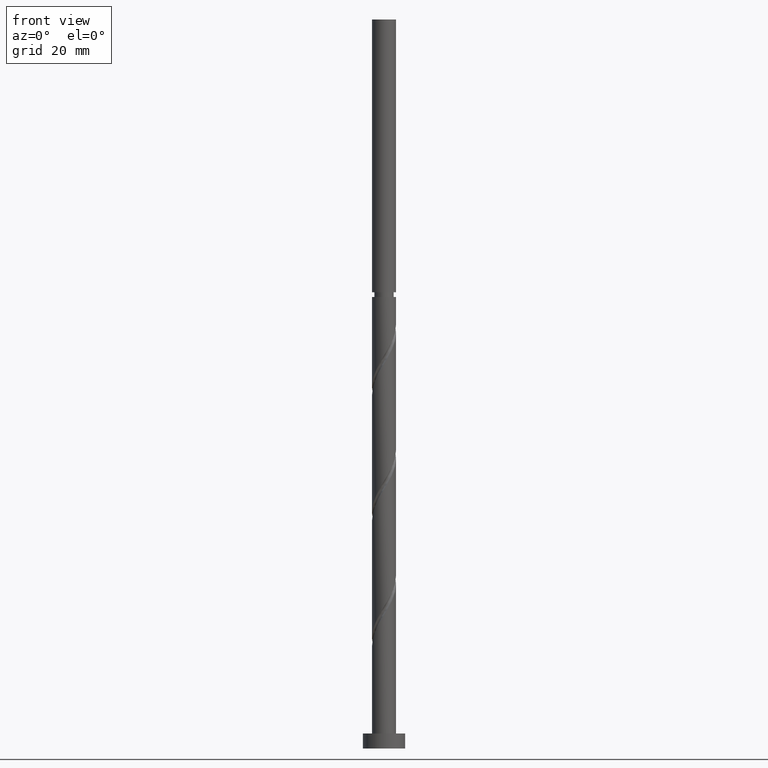
[diagram: clean part render]
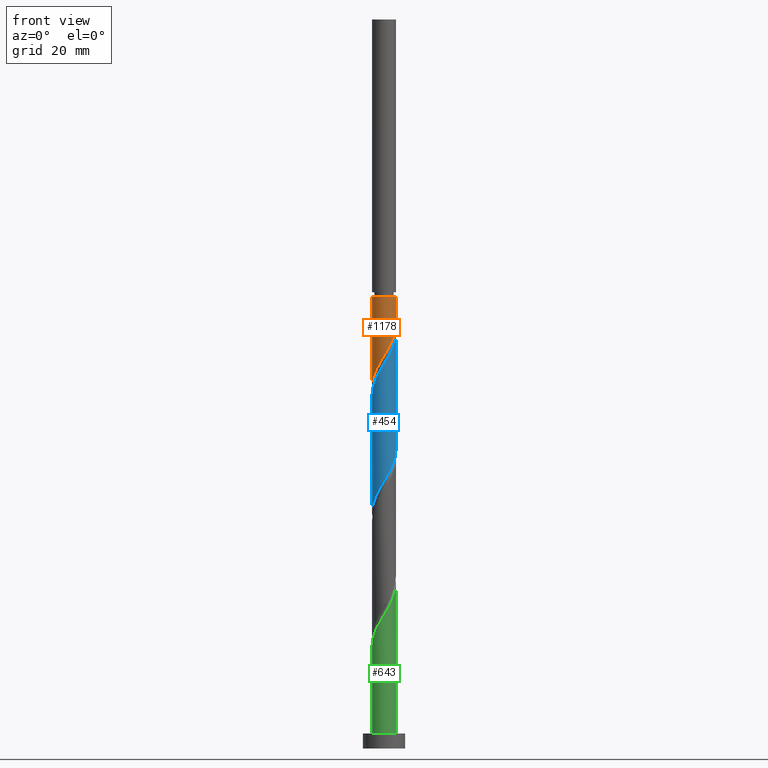
[diagram: same view with three faces highlighted in distinct colors, each labeled with its STEP entity id]
A machine part, front view with three faces highlighted in distinct colors.
Their STEP definitions:

[orange] entity #1178 — the highlighted cylindrical surface (edge-blend (fillet) strip) has radius 4 mm, axis along (-0, -0, -1).
#80 = CARTESIAN_POINT ( 'NONE',  ( 1.116900737103331265, -3.840902594893293109, 132.2366838773035624 ) ) ;
#105 = CARTESIAN_POINT ( 'NONE',  ( 3.795472800412704295, -1.262690073346325770, 138.6469402875599144 ) ) ;
#205 = CARTESIAN_POINT ( 'NONE',  ( -2.149990540898523594, -3.407848799785711869, 126.6277095183292403 ) ) ;
#234 = ORIENTED_EDGE ( 'NONE', *, *, #1509, .F. ) ;
#245 = VECTOR ( 'NONE', #653, 1000.000000000000000 ) ;
#362 = CARTESIAN_POINT ( 'NONE',  ( 3.999999999999999112, -4.337222174653194267E-16, 140.7761442147339324 ) ) ;
#370 = CARTESIAN_POINT ( 'NONE',  ( 0.1652574756069114525, -3.996584787885280488, 130.6341197747394460 ) ) ;
#380 = CARTESIAN_POINT ( 'NONE',  ( -3.678270583471656252, -1.571726921181628267, 122.6212992619189492 ) ) ;
#385 = CARTESIAN_POINT ( 'NONE',  ( -2.526528931719814075, -3.101072646227871932, 125.8264274670471536 ) ) ;
#388 = ORIENTED_EDGE ( 'NONE', *, *, #1774, .F. ) ;
#457 = EDGE_CURVE ( 'NONE', #1026, #851, #1445, .T. ) ;
#468 = CARTESIAN_POINT ( 'NONE',  ( -3.999999999999993339, 0.000000000000000000, 149.8648890055087008 ) ) ;
#470 = DIRECTION ( 'NONE',  ( -0.000000000000000000, -0.000000000000000000, -1.000000000000000000 ) ) ;
#487 = DIRECTION ( 'NONE',  ( -1.000000000000000000, 0.000000000000000000, 0.000000000000000000 ) ) ;
#513 = CARTESIAN_POINT ( 'NONE',  ( 0.6505307266678593825, -3.976518897454785151, 131.4354018260215469 ) ) ;
#537 = EDGE_LOOP ( 'NONE', ( #234, #1492, #1225, #388 ) ) ;
#608 =( BOUNDED_CURVE ( )  B_SPLINE_CURVE ( 2, ( #362, #931, #1239, #1661, #105, #1486, #1786, #1230, #1498, #1080, #1218, #1090, #80, #513, #370, #1515, #636, #1209, #1098, #205, #385, #1653, #776, #1336, #380, #807, #1776, #1521, #814 ),
 .UNSPECIFIED., .F., .T. ) 
 B_SPLINE_CURVE_WITH_KNOTS ( ( 3, 2, 2, 2, 2, 2, 2, 2, 2, 2, 2, 2, 2, 2, 3 ),
 ( 0.3045271625973832164, 0.3076923076923077094, 0.3173076923076922906, 0.3269230769230769273, 0.3365384615384615641, 0.3461538461538461453, 0.3557692307692307820, 0.3653846153846153633, 0.3750000000000000000, 0.3846153846153846367, 0.3942307692307692180, 0.4038461538461538547, 0.4134615384615384359, 0.4230769230769230727, 0.4295271625973834384 ),
 .UNSPECIFIED. ) 
 CURVE ( )  GEOMETRIC_REPRESENTATION_ITEM ( )  RATIONAL_B_SPLINE_CURVE ( ( 0.9061636035682711920, 0.9069090390690599524, 0.9090909090909164991, 0.9024626128164200400, 0.9090909090909164991, 0.9024626128164200400, 0.9090909090909164991, 0.9024626128164200400, 0.9090909090909164991, 0.9024626128164200400, 0.9090909090909164991, 0.9024626128164200400, 0.9090909090909164991, 0.9024626128164200400, 0.9090909090909164991, 0.9024626128164200400, 0.9090909090909164991, 0.9024626128164200400, 0.9090909090909164991, 0.9024626128164200400, 0.9090909090909164991, 0.9024626128164200400, 0.9090909090909164991, 0.9024626128164200400, 0.9090909090909164991, 0.9024626128164200400, 0.9090909090909164991, 0.9046444828382764758, 0.9061636035682714141 ) ) 
 REPRESENTATION_ITEM ( '' )  );
#636 = CARTESIAN_POINT ( 'NONE',  ( -0.7959899496852971268, -3.919999999999999929, 129.0315556721753580 ) ) ;
#652 = CIRCLE ( 'NONE', #681, 3.999999999999993339 ) ;
#653 = DIRECTION ( 'NONE',  ( -0.000000000000000000, -0.000000000000000000, -1.000000000000000000 ) ) ;
#681 = AXIS2_PLACEMENT_3D ( 'NONE', #848, #1410, #972 ) ;
#754 = VERTEX_POINT ( 'NONE', #827 ) ;
#756 = DIRECTION ( 'NONE',  ( -0.000000000000000000, -0.000000000000000000, -1.000000000000000000 ) ) ;
#776 = CARTESIAN_POINT ( 'NONE',  ( -3.195247853079536071, -2.406323161462444737, 124.2238633644830514 ) ) ;
#791 = EDGE_CURVE ( 'NONE', #1440, #1026, #652, .T. ) ;
#801 = CARTESIAN_POINT ( 'NONE',  ( 4.000000000000000000, 4.898587196589412829E-16, 242.0000000000000000 ) ) ;
#807 = CARTESIAN_POINT ( 'NONE',  ( -3.869112783325347582, -1.125104012108398166, 121.8200172106369337 ) ) ;
#814 = CARTESIAN_POINT ( 'NONE',  ( -3.999999999999999112, 4.441913744386202858E-15, 119.9428108814005611 ) ) ;
#827 = CARTESIAN_POINT ( 'NONE',  ( 3.999999999999999112, -4.337222174653194267E-16, 140.7761442147339324 ) ) ;
#848 = CARTESIAN_POINT ( 'NONE',  ( 0.000000000000000000, 0.000000000000000000, 149.8648890055087008 ) ) ;
#851 = VERTEX_POINT ( 'NONE', #1809 ) ;
#931 = CARTESIAN_POINT ( 'NONE',  ( 3.999999999999999112, -0.1590925213470716082, 140.5119732991009585 ) ) ;
#972 = DIRECTION ( 'NONE',  ( -1.000000000000000000, 0.000000000000000000, 0.000000000000000000 ) ) ;
#1012 = CARTESIAN_POINT ( 'NONE',  ( 0.000000000000000000, 0.000000000000000000, 242.0000000000000000 ) ) ;
#1026 = VERTEX_POINT ( 'NONE', #468 ) ;
#1080 = CARTESIAN_POINT ( 'NONE',  ( 2.423996827517794550, -3.218715916066174465, 134.6405300311496944 ) ) ;
#1090 = CARTESIAN_POINT ( 'NONE',  ( 1.583270747538801482, -3.705286292331802844, 133.0379659285856633 ) ) ;
#1098 = CARTESIAN_POINT ( 'NONE',  ( -1.710977332407541240, -3.615599060734966397, 127.4289915696112416 ) ) ;
#1178 = ADVANCED_FACE ( 'NONE', ( #1833 ), #1696, .T. ) ;
#1209 = CARTESIAN_POINT ( 'NONE',  ( -1.271964123916559553, -3.823349321684224478, 128.2302736208933140 ) ) ;
#1218 = CARTESIAN_POINT ( 'NONE',  ( 2.003633787528297461, -3.462001104198987544, 133.8392479798676504 ) ) ;
#1225 = ORIENTED_EDGE ( 'NONE', *, *, #457, .T. ) ;
#1230 = CARTESIAN_POINT ( 'NONE',  ( 3.123849022751422400, -2.545085470315096465, 136.2430941337138393 ) ) ;
#1239 = CARTESIAN_POINT ( 'NONE',  ( 3.987364772516036382, -0.3176825001445939267, 140.2495043901240592 ) ) ;
#1276 = LINE ( 'NONE', #801, #245 ) ;
#1336 = CARTESIAN_POINT ( 'NONE',  ( -3.487428383617967587, -2.018349830254857480, 123.4225813132009932 ) ) ;
#1410 = DIRECTION ( 'NONE',  ( -0.000000000000000000, -0.000000000000000000, -1.000000000000000000 ) ) ;
#1440 = VERTEX_POINT ( 'NONE', #1707 ) ;
#1445 = LINE ( 'NONE', #1468, #1818 ) ;
#1468 = CARTESIAN_POINT ( 'NONE',  ( -4.000000000000000000, 0.000000000000000000, 242.0000000000000000 ) ) ;
#1486 = CARTESIAN_POINT ( 'NONE',  ( 3.642154467511932392, -1.723543908038581485, 137.8456582362779557 ) ) ;
#1492 = ORIENTED_EDGE ( 'NONE', *, *, #791, .T. ) ;
#1498 = CARTESIAN_POINT ( 'NONE',  ( 2.773922925134609585, -2.881900693190634133, 135.4418120824317668 ) ) ;
#1509 = EDGE_CURVE ( 'NONE', #1440, #754, #1276, .T. ) ;
#1515 = CARTESIAN_POINT ( 'NONE',  ( -0.3200157754540360888, -4.016650678315776268, 129.8328377234574305 ) ) ;
#1521 = CARTESIAN_POINT ( 'NONE',  ( -4.000000000000000888, -0.3250257541481746948, 120.4825116187488874 ) ) ;
#1644 = AXIS2_PLACEMENT_3D ( 'NONE', #1012, #470, #487 ) ;
#1653 = CARTESIAN_POINT ( 'NONE',  ( -2.903067322541106332, -2.794296492670033771, 125.0251454157651239 ) ) ;
#1661 = CARTESIAN_POINT ( 'NONE',  ( 3.948791133313477530, -0.8018362386540671682, 139.4482223388420152 ) ) ;
#1696 = CYLINDRICAL_SURFACE ( 'NONE', #1644, 4.000000000000000000 ) ;
#1707 = CARTESIAN_POINT ( 'NONE',  ( 3.999999999999993339, 4.898587196589407898E-16, 149.8648890055087008 ) ) ;
#1774 = EDGE_CURVE ( 'NONE', #754, #851, #608, .T. ) ;
#1776 = CARTESIAN_POINT ( 'NONE',  ( -3.947525597521973406, -0.6457876252366406833, 121.0187351593548613 ) ) ;
#1786 = CARTESIAN_POINT ( 'NONE',  ( 3.383001745131677840, -2.134314689176838975, 137.0443761849958548 ) ) ;
#1809 = CARTESIAN_POINT ( 'NONE',  ( -3.999999999999999112, 4.441913744386202858E-15, 119.9428108814005611 ) ) ;
#1818 = VECTOR ( 'NONE', #756, 1000.000000000000000 ) ;
#1833 = FACE_OUTER_BOUND ( 'NONE', #537, .T. ) ;

[blue] entity #454 — the highlighted cylindrical surface (edge-blend (fillet) strip) has radius 4 mm, axis along (-0, -0, -1).
#17 = CARTESIAN_POINT ( 'NONE',  ( 2.773922925134609585, -2.881900693190634133, 93.77514541576509544 ) ) ;
#41 = CARTESIAN_POINT ( 'NONE',  ( -2.149990540898523594, -3.407848799785711869, 84.96104285166255465 ) ) ;
#59 = CARTESIAN_POINT ( 'NONE',  ( 2.423996827517794550, -3.218715916066174465, 92.97386336448307986 ) ) ;
#63 = ORIENTED_EDGE ( 'NONE', *, *, #794, .F. ) ;
#66 = CARTESIAN_POINT ( 'NONE',  ( -1.271964123916559553, -3.823349321684224478, 86.56360695422665685 ) ) ;
#88 = CARTESIAN_POINT ( 'NONE',  ( 3.999999999999999112, -4.157750912253752728E-15, 99.10947754806721832 ) ) ;
#109 = DIRECTION ( 'NONE',  ( -0.000000000000000000, -0.000000000000000000, -1.000000000000000000 ) ) ;
#113 = CARTESIAN_POINT ( 'NONE',  ( 3.195247853079538292, -2.406323161462450511, 133.8392479798676504 ) ) ;
#142 = CARTESIAN_POINT ( 'NONE',  ( -0.1652574756069151163, -3.996584787885284928, 127.4289915696112416 ) ) ;
#170 = CARTESIAN_POINT ( 'NONE',  ( -0.7959899496852971268, -3.919999999999999929, 87.36488900550871506 ) ) ;
#216 = VECTOR ( 'NONE', #1804, 1000.000000000000000 ) ;
#228 = CARTESIAN_POINT ( 'NONE',  ( -4.000000000000003553, -0.1590925213470728294, 117.5511380452497576 ) ) ;
#247 = CARTESIAN_POINT ( 'NONE',  ( 4.000000000000004441, 2.437817980925746622E-15, 138.1203004629501550 ) ) ;
#271 = VECTOR ( 'NONE', #109, 1000.000000000000000 ) ;
#280 = CARTESIAN_POINT ( 'NONE',  ( 3.487428383617968475, -2.018349830254862365, 134.6405300311496376 ) ) ;
#285 = CARTESIAN_POINT ( 'NONE',  ( 4.000000000000000000, 4.898587196589412829E-16, 242.0000000000000000 ) ) ;
#312 = DIRECTION ( 'NONE',  ( -1.000000000000000000, 0.000000000000000000, 0.000000000000000000 ) ) ;
#318 = CARTESIAN_POINT ( 'NONE',  ( -3.999999999999999112, -0.3250257541481811896, 78.81584495208223018 ) ) ;
#321 = CYLINDRICAL_SURFACE ( 'NONE', #877, 4.000000000000000000 ) ;
#330 = CARTESIAN_POINT ( 'NONE',  ( 1.583270747538801482, -3.705286292331802844, 91.37129926191893503 ) ) ;
#341 = CARTESIAN_POINT ( 'NONE',  ( -3.869112783325347582, -1.125104012108398166, 80.15335054397026227 ) ) ;
#402 = EDGE_CURVE ( 'NONE', #965, #1633, #1232, .T. ) ;
#414 = CARTESIAN_POINT ( 'NONE',  ( 3.999999999999999112, -4.157750912253752728E-15, 99.10947754806723253 ) ) ;
#422 = CARTESIAN_POINT ( 'NONE',  ( 2.149990540898522706, -3.407848799785716309, 131.4354018260214900 ) ) ;
#454 = ADVANCED_FACE ( 'NONE', ( #571 ), #321, .T. ) ;
#473 = CARTESIAN_POINT ( 'NONE',  ( -0.3200157754540360888, -4.016650678315776268, 88.16617105679077326 ) ) ;
#482 = CARTESIAN_POINT ( 'NONE',  ( 1.116900737103331265, -3.840902594893293109, 90.57001721063689104 ) ) ;
#486 = ORIENTED_EDGE ( 'NONE', *, *, #402, .T. ) ;
#489 = CARTESIAN_POINT ( 'NONE',  ( -2.526528931719814075, -3.101072646227871932, 84.15976080038049645 ) ) ;
#539 = CARTESIAN_POINT ( 'NONE',  ( -3.795472800412710512, -1.262690073346324215, 119.4161710567907448 ) ) ;
#545 = CARTESIAN_POINT ( 'NONE',  ( -3.642154467511936389, -1.723543908038582595, 120.2174531080727888 ) ) ;
#551 = CARTESIAN_POINT ( 'NONE',  ( -3.123849022751428173, -2.545085470315096465, 121.8200172106369052 ) ) ;
#571 = FACE_OUTER_BOUND ( 'NONE', #765, .T. ) ;
#600 = CARTESIAN_POINT ( 'NONE',  ( 0.000000000000000000, 0.000000000000000000, 242.0000000000000000 ) ) ;
#601 = EDGE_CURVE ( 'NONE', #1068, #1633, #1522, .T. ) ;
#624 = CARTESIAN_POINT ( 'NONE',  ( -1.710977332407541240, -3.615599060734966397, 85.76232490294459865 ) ) ;
#646 = CARTESIAN_POINT ( 'NONE',  ( 3.795472800412704295, -1.262690073346325770, 96.98027362089329984 ) ) ;
#666 = CARTESIAN_POINT ( 'NONE',  ( -4.000000000000000000, 0.000000000000000000, 242.0000000000000000 ) ) ;
#674 = CARTESIAN_POINT ( 'NONE',  ( 3.947525597521978291, -0.6457876252366437919, 137.0443761849958548 ) ) ;
#691 = CARTESIAN_POINT ( 'NONE',  ( 1.271964123916557998, -3.823349321684228919, 129.8328377234574020 ) ) ;
#703 = CARTESIAN_POINT ( 'NONE',  ( 4.000000000000003553, -0.3250257541481883505, 137.5805997256018145 ) ) ;
#728 = DIRECTION ( 'NONE',  ( -0.000000000000000000, -0.000000000000000000, -1.000000000000000000 ) ) ;
#753 = CARTESIAN_POINT ( 'NONE',  ( -3.678270583471656252, -1.571726921181628267, 80.95463259525229205 ) ) ;
#765 = EDGE_LOOP ( 'NONE', ( #63, #1434, #486, #1404 ) ) ;
#794 = EDGE_CURVE ( 'NONE', #1182, #1068, #838, .T. ) ;
#795 = CARTESIAN_POINT ( 'NONE',  ( -3.999999999999999112, 2.557465489192056693E-15, 78.27614421473393236 ) ) ;
#831 = CARTESIAN_POINT ( 'NONE',  ( -0.6505307266678633793, -3.976518897454789148, 126.6277095183291692 ) ) ;
#838 = LINE ( 'NONE', #285, #271 ) ;
#853 = CARTESIAN_POINT ( 'NONE',  ( 3.678270583471661581, -1.571726921181631154, 135.4418120824317384 ) ) ;
#877 = AXIS2_PLACEMENT_3D ( 'NONE', #600, #728, #312 ) ;
#886 = CARTESIAN_POINT ( 'NONE',  ( 0.6505307266678593825, -3.976518897454785151, 89.76873515935487546 ) ) ;
#965 = VERTEX_POINT ( 'NONE', #1623 ) ;
#997 = CARTESIAN_POINT ( 'NONE',  ( -1.583270747538804368, -3.705286292331806841, 125.0251454157650954 ) ) ;
#1006 =( BOUNDED_CURVE ( )  B_SPLINE_CURVE ( 2, ( #1505, #228, #1263, #1413, #539, #545, #1406, #551, #1674, #1828, #1683, #997, #1394, #831, #142, #1282, #1705, #691, #1668, #422, #1565, #1557, #113, #280, #853, #1274, #674, #703, #1110 ),
 .UNSPECIFIED., .F., .T. ) 
 B_SPLINE_CURVE_WITH_KNOTS ( ( 3, 2, 2, 2, 2, 2, 2, 2, 2, 2, 2, 2, 2, 2, 3 ),
 ( 0.5545271625973833274, 0.5576923076923077094, 0.5673076923076922906, 0.5769230769230768718, 0.5865384615384615641, 0.5961538461538461453, 0.6057692307692308376, 0.6153846153846154188, 0.6250000000000000000, 0.6346153846153845812, 0.6442307692307691624, 0.6538461538461538547, 0.6634615384615384359, 0.6730769230769231282, 0.6795271625973832164 ),
 .UNSPECIFIED. ) 
 CURVE ( )  GEOMETRIC_REPRESENTATION_ITEM ( )  RATIONAL_B_SPLINE_CURVE ( ( 0.9061636035682768542, 0.9069090390690655035, 0.9090909090909219392, 0.9024626128164254801, 0.9090909090909219392, 0.9024626128164254801, 0.9090909090909219392, 0.9024626128164254801, 0.9090909090909219392, 0.9024626128164254801, 0.9090909090909219392, 0.9024626128164254801, 0.9090909090909219392, 0.9024626128164254801, 0.9090909090909219392, 0.9024626128164254801, 0.9090909090909219392, 0.9024626128164254801, 0.9090909090909219392, 0.9024626128164254801, 0.9090909090909219392, 0.9024626128164254801, 0.9090909090909219392, 0.9024626128164254801, 0.9090909090909219392, 0.9024626128164254801, 0.9090909090909219392, 0.9046444828382820269, 0.9061636035682766321 ) ) 
 REPRESENTATION_ITEM ( '' )  );
#1034 = CARTESIAN_POINT ( 'NONE',  ( -2.903067322541106332, -2.794296492670033771, 83.35847874909843824 ) ) ;
#1044 = CARTESIAN_POINT ( 'NONE',  ( 2.003633787528297461, -3.462001104198987544, 92.17258131320102166 ) ) ;
#1068 = VERTEX_POINT ( 'NONE', #414 ) ;
#1110 = CARTESIAN_POINT ( 'NONE',  ( 4.000000000000004441, 2.437817980925746622E-15, 138.1203004629501834 ) ) ;
#1182 = VERTEX_POINT ( 'NONE', #247 ) ;
#1232 = LINE ( 'NONE', #666, #216 ) ;
#1263 = CARTESIAN_POINT ( 'NONE',  ( -3.987364772516043487, -0.3176825001445902630, 117.8136069542266426 ) ) ;
#1274 = CARTESIAN_POINT ( 'NONE',  ( 3.869112783325351135, -1.125104012108402829, 136.2430941337138108 ) ) ;
#1282 = CARTESIAN_POINT ( 'NONE',  ( 0.3200157754540333133, -4.016650678315780709, 128.2302736208932856 ) ) ;
#1333 = CARTESIAN_POINT ( 'NONE',  ( 0.1652574756069114525, -3.996584787885280488, 88.96745310807278884 ) ) ;
#1394 = CARTESIAN_POINT ( 'NONE',  ( -1.116900737103334151, -3.840902594893298883, 125.8264274670471536 ) ) ;
#1404 = ORIENTED_EDGE ( 'NONE', *, *, #601, .F. ) ;
#1406 = CARTESIAN_POINT ( 'NONE',  ( -3.383001745131683169, -2.134314689176839419, 121.0187351593548613 ) ) ;
#1413 = CARTESIAN_POINT ( 'NONE',  ( -3.948791133313481083, -0.8018362386540663911, 118.6148890055086866 ) ) ;
#1428 = CARTESIAN_POINT ( 'NONE',  ( 3.383001745131677840, -2.134314689176838975, 95.37770951832921185 ) ) ;
#1434 = ORIENTED_EDGE ( 'NONE', *, *, #1788, .F. ) ;
#1476 = CARTESIAN_POINT ( 'NONE',  ( -3.947525597521973406, -0.6457876252366406833, 79.35206849268817564 ) ) ;
#1505 = CARTESIAN_POINT ( 'NONE',  ( -4.000000000000004441, -3.006143645190644516E-15, 117.2869671296168264 ) ) ;
#1522 =( BOUNDED_CURVE ( )  B_SPLINE_CURVE ( 2, ( #88, #1767, #1637, #1777, #646, #1654, #1428, #1700, #17, #59, #1044, #330, #482, #886, #1333, #473, #170, #66, #624, #41, #489, #1034, #1617, #1599, #753, #341, #1476, #318, #795 ),
 .UNSPECIFIED., .F., .T. ) 
 B_SPLINE_CURVE_WITH_KNOTS ( ( 3, 2, 2, 2, 2, 2, 2, 2, 2, 2, 2, 2, 2, 2, 3 ),
 ( 0.5545271625973833274, 0.5576923076923077094, 0.5673076923076922906, 0.5769230769230768718, 0.5865384615384615641, 0.5961538461538461453, 0.6057692307692307265, 0.6153846153846154188, 0.6250000000000000000, 0.6346153846153845812, 0.6442307692307692735, 0.6538461538461538547, 0.6634615384615384359, 0.6730769230769231282, 0.6795271625973833274 ),
 .UNSPECIFIED. ) 
 CURVE ( )  GEOMETRIC_REPRESENTATION_ITEM ( )  RATIONAL_B_SPLINE_CURVE ( ( 0.9061636035682713031, 0.9069090390690599524, 0.9090909090909164991, 0.9024626128164200400, 0.9090909090909164991, 0.9024626128164200400, 0.9090909090909164991, 0.9024626128164200400, 0.9090909090909164991, 0.9024626128164200400, 0.9090909090909164991, 0.9024626128164200400, 0.9090909090909164991, 0.9024626128164200400, 0.9090909090909164991, 0.9024626128164200400, 0.9090909090909164991, 0.9024626128164200400, 0.9090909090909164991, 0.9024626128164200400, 0.9090909090909164991, 0.9024626128164200400, 0.9090909090909164991, 0.9024626128164200400, 0.9090909090909164991, 0.9024626128164200400, 0.9090909090909164991, 0.9046444828382765868, 0.9061636035682713031 ) ) 
 REPRESENTATION_ITEM ( '' )  );
#1557 = CARTESIAN_POINT ( 'NONE',  ( 2.903067322541108108, -2.794296492670036880, 133.0379659285856064 ) ) ;
#1565 = CARTESIAN_POINT ( 'NONE',  ( 2.526528931719816740, -3.101072646227876817, 132.2366838773035909 ) ) ;
#1599 = CARTESIAN_POINT ( 'NONE',  ( -3.487428383617967587, -2.018349830254857480, 81.75591464653436446 ) ) ;
#1617 = CARTESIAN_POINT ( 'NONE',  ( -3.195247853079536071, -2.406323161462444737, 82.55719669781639425 ) ) ;
#1623 = CARTESIAN_POINT ( 'NONE',  ( -4.000000000000004441, -3.006143645190644516E-15, 117.2869671296168264 ) ) ;
#1633 = VERTEX_POINT ( 'NONE', #1734 ) ;
#1637 = CARTESIAN_POINT ( 'NONE',  ( 3.987364772516036382, -0.3176825001445939267, 98.58283772345743046 ) ) ;
#1654 = CARTESIAN_POINT ( 'NONE',  ( 3.642154467511932392, -1.723543908038581485, 96.17899156961124163 ) ) ;
#1668 = CARTESIAN_POINT ( 'NONE',  ( 1.710977332407540352, -3.615599060734972614, 130.6341197747395029 ) ) ;
#1674 = CARTESIAN_POINT ( 'NONE',  ( -2.773922925134614026, -2.881900693190636353, 122.6212992619189492 ) ) ;
#1683 = CARTESIAN_POINT ( 'NONE',  ( -2.003633787528302790, -3.462001104198990209, 124.2238633644830372 ) ) ;
#1700 = CARTESIAN_POINT ( 'NONE',  ( 3.123849022751422400, -2.545085470315096465, 94.57642746704719627 ) ) ;
#1705 = CARTESIAN_POINT ( 'NONE',  ( 0.7959899496852965717, -3.920000000000005702, 129.0315556721753580 ) ) ;
#1734 = CARTESIAN_POINT ( 'NONE',  ( -3.999999999999999112, 2.557465489192056693E-15, 78.27614421473393236 ) ) ;
#1767 = CARTESIAN_POINT ( 'NONE',  ( 3.999999999999999112, -0.1590925213470762156, 98.84530663243427284 ) ) ;
#1777 = CARTESIAN_POINT ( 'NONE',  ( 3.948791133313477530, -0.8018362386540671682, 97.78155567217538646 ) ) ;
#1788 = EDGE_CURVE ( 'NONE', #965, #1182, #1006, .T. ) ;
#1804 = DIRECTION ( 'NONE',  ( -0.000000000000000000, -0.000000000000000000, -1.000000000000000000 ) ) ;
#1828 = CARTESIAN_POINT ( 'NONE',  ( -2.423996827517800323, -3.218715916066174021, 123.4225813132009932 ) ) ;

[green] entity #643 — the highlighted cylindrical surface (edge-blend (fillet) strip) has radius 4 mm, axis along (-0, -0, -1).
#5 = CIRCLE ( 'NONE', #1057, 4.000000000000000000 ) ;
#24 = CARTESIAN_POINT ( 'NONE',  ( 0.7959899496852965717, -3.920000000000005702, 45.69822233884205787 ) ) ;
#44 = CARTESIAN_POINT ( 'NONE',  ( 1.710977332407540352, -3.615599060734972614, 47.30078644140614585 ) ) ;
#56 = CARTESIAN_POINT ( 'NONE',  ( -3.948791133313481083, -0.8018362386540663911, 35.28155567217535804 ) ) ;
#74 = CARTESIAN_POINT ( 'NONE',  ( 4.000000000000000000, 4.898587196589412829E-16, 242.0000000000000000 ) ) ;
#131 = EDGE_CURVE ( 'NONE', #213, #1094, #819, .T. ) ;
#145 = CARTESIAN_POINT ( 'NONE',  ( 0.000000000000000000, 0.000000000000000000, 5.000000000000000000 ) ) ;
#172 = CARTESIAN_POINT ( 'NONE',  ( 4.000000000000003553, 5.683256642648979922E-16, 54.78696712961683346 ) ) ;
#213 = VERTEX_POINT ( 'NONE', #579 ) ;
#225 = EDGE_LOOP ( 'NONE', ( #410, #420, #1473, #1383 ) ) ;
#294 = DIRECTION ( 'NONE',  ( 1.000000000000000000, 0.000000000000000000, 0.000000000000000000 ) ) ;
#311 = CARTESIAN_POINT ( 'NONE',  ( 3.869112783325351135, -1.125104012108402829, 52.90976080038047513 ) ) ;
#344 = CARTESIAN_POINT ( 'NONE',  ( -4.000000000000000000, 0.000000000000000000, 242.0000000000000000 ) ) ;
#391 = FACE_OUTER_BOUND ( 'NONE', #225, .T. ) ;
#404 = EDGE_CURVE ( 'NONE', #213, #1625, #1695, .T. ) ;
#410 = ORIENTED_EDGE ( 'NONE', *, *, #989, .F. ) ;
#420 = ORIENTED_EDGE ( 'NONE', *, *, #131, .F. ) ;
#447 = CARTESIAN_POINT ( 'NONE',  ( 0.3200157754540333133, -4.016650678315780709, 44.89694028755997834 ) ) ;
#508 = VECTOR ( 'NONE', #1170, 1000.000000000000000 ) ;
#579 = CARTESIAN_POINT ( 'NONE',  ( -4.000000000000004441, 1.003543475583543977E-14, 33.95363379628349776 ) ) ;
#609 = CARTESIAN_POINT ( 'NONE',  ( 3.487428383617968475, -2.018349830254862365, 51.30719669781638714 ) ) ;
#612 = CARTESIAN_POINT ( 'NONE',  ( -3.795472800412710512, -1.262690073346324215, 36.08283772345741625 ) ) ;
#629 = CARTESIAN_POINT ( 'NONE',  ( -4.000000000000004441, -0.1590925213470683885, 34.21780471191645745 ) ) ;
#634 = CARTESIAN_POINT ( 'NONE',  ( 0.000000000000000000, 0.000000000000000000, 242.0000000000000000 ) ) ;
#643 = ADVANCED_FACE ( 'NONE', ( #391 ), #1529, .T. ) ;
#727 = CARTESIAN_POINT ( 'NONE',  ( 4.000000000000004441, -0.3250257541481826884, 54.24726639226850722 ) ) ;
#746 = CARTESIAN_POINT ( 'NONE',  ( -0.1652574756069151163, -3.996584787885284928, 44.09565823627792724 ) ) ;
#748 = VECTOR ( 'NONE', #1590, 1000.000000000000000 ) ;
#819 =( BOUNDED_CURVE ( )  B_SPLINE_CURVE ( 2, ( #1319, #629, #1074, #56, #612, #1621, #1760, #1028, #1155, #1467, #1147, #1726, #1579, #1312, #746, #447, #24, #1047, #44, #1567, #1284, #1601, #1749, #609, #1589, #311, #1184, #727, #172 ),
 .UNSPECIFIED., .F., .T. ) 
 B_SPLINE_CURVE_WITH_KNOTS ( ( 3, 2, 2, 2, 2, 2, 2, 2, 2, 2, 2, 2, 2, 2, 3 ),
 ( 0.05452716259738323717, 0.05769230769230770939, 0.06730769230769229061, 0.07692307692307687184, 0.08653846153846156408, 0.09615384615384614531, 0.1057692307692307265, 0.1153846153846154188, 0.1250000000000000000, 0.1346153846153845812, 0.1442307692307692735, 0.1538461538461538547, 0.1634615384615384359, 0.1730769230769231282, 0.1795271625973833274 ),
 .UNSPECIFIED. ) 
 CURVE ( )  GEOMETRIC_REPRESENTATION_ITEM ( )  RATIONAL_B_SPLINE_CURVE ( ( 0.9061636035682766321, 0.9069090390690652814, 0.9090909090909219392, 0.9024626128164254801, 0.9090909090909219392, 0.9024626128164254801, 0.9090909090909219392, 0.9024626128164254801, 0.9090909090909219392, 0.9024626128164254801, 0.9090909090909219392, 0.9024626128164254801, 0.9090909090909219392, 0.9024626128164254801, 0.9090909090909219392, 0.9024626128164254801, 0.9090909090909219392, 0.9024626128164254801, 0.9090909090909219392, 0.9024626128164254801, 0.9090909090909219392, 0.9024626128164254801, 0.9090909090909219392, 0.9024626128164254801, 0.9090909090909219392, 0.9024626128164254801, 0.9090909090909219392, 0.9046444828382820269, 0.9061636035682768542 ) ) 
 REPRESENTATION_ITEM ( '' )  );
#833 = CARTESIAN_POINT ( 'NONE',  ( 4.000000000000003553, 5.683256642648979922E-16, 54.78696712961683346 ) ) ;
#841 = AXIS2_PLACEMENT_3D ( 'NONE', #634, #1207, #1495 ) ;
#908 = LINE ( 'NONE', #74, #508 ) ;
#979 = DIRECTION ( 'NONE',  ( 0.000000000000000000, 0.000000000000000000, 1.000000000000000000 ) ) ;
#989 = EDGE_CURVE ( 'NONE', #1094, #1813, #908, .T. ) ;
#1028 = CARTESIAN_POINT ( 'NONE',  ( -3.123849022751428173, -2.545085470315096465, 38.48668387730357665 ) ) ;
#1047 = CARTESIAN_POINT ( 'NONE',  ( 1.271964123916557998, -3.823349321684228919, 46.49950439012408054 ) ) ;
#1057 = AXIS2_PLACEMENT_3D ( 'NONE', #145, #979, #294 ) ;
#1074 = CARTESIAN_POINT ( 'NONE',  ( -3.987364772516043487, -0.3176825001445902630, 34.48027362089332826 ) ) ;
#1094 = VERTEX_POINT ( 'NONE', #833 ) ;
#1147 = CARTESIAN_POINT ( 'NONE',  ( -2.003633787528302790, -3.462001104198990209, 40.89053003114972284 ) ) ;
#1155 = CARTESIAN_POINT ( 'NONE',  ( -2.773922925134614026, -2.881900693190636353, 39.28796592858562775 ) ) ;
#1170 = DIRECTION ( 'NONE',  ( -0.000000000000000000, -0.000000000000000000, -1.000000000000000000 ) ) ;
#1184 = CARTESIAN_POINT ( 'NONE',  ( 3.947525597521978291, -0.6457876252366437919, 53.71104285166255465 ) ) ;
#1207 = DIRECTION ( 'NONE',  ( -0.000000000000000000, -0.000000000000000000, -1.000000000000000000 ) ) ;
#1284 = CARTESIAN_POINT ( 'NONE',  ( 2.526528931719816740, -3.101072646227876817, 48.90335054397023384 ) ) ;
#1312 = CARTESIAN_POINT ( 'NONE',  ( -0.6505307266678633793, -3.976518897454789148, 43.29437618499587614 ) ) ;
#1319 = CARTESIAN_POINT ( 'NONE',  ( -4.000000000000004441, 1.003543475583543977E-14, 33.95363379628349776 ) ) ;
#1383 = ORIENTED_EDGE ( 'NONE', *, *, #1453, .T. ) ;
#1453 = EDGE_CURVE ( 'NONE', #1625, #1813, #5, .T. ) ;
#1467 = CARTESIAN_POINT ( 'NONE',  ( -2.423996827517800323, -3.218715916066174021, 40.08924797986767175 ) ) ;
#1473 = ORIENTED_EDGE ( 'NONE', *, *, #404, .T. ) ;
#1495 = DIRECTION ( 'NONE',  ( -1.000000000000000000, 0.000000000000000000, 0.000000000000000000 ) ) ;
#1529 = CYLINDRICAL_SURFACE ( 'NONE', #841, 4.000000000000000000 ) ;
#1540 = CARTESIAN_POINT ( 'NONE',  ( 4.000000000000000000, 4.898587196589412829E-16, 5.000000000000000000 ) ) ;
#1567 = CARTESIAN_POINT ( 'NONE',  ( 2.149990540898522706, -3.407848799785716309, 48.10206849268817564 ) ) ;
#1579 = CARTESIAN_POINT ( 'NONE',  ( -1.116900737103334151, -3.840902594893298883, 42.49309413371383215 ) ) ;
#1589 = CARTESIAN_POINT ( 'NONE',  ( 3.678270583471661581, -1.571726921181631154, 52.10847874909845245 ) ) ;
#1590 = DIRECTION ( 'NONE',  ( -0.000000000000000000, -0.000000000000000000, -1.000000000000000000 ) ) ;
#1601 = CARTESIAN_POINT ( 'NONE',  ( 2.903067322541108108, -2.794296492670036880, 49.70463259525227784 ) ) ;
#1621 = CARTESIAN_POINT ( 'NONE',  ( -3.642154467511936389, -1.723543908038582595, 36.88411977473946024 ) ) ;
#1625 = VERTEX_POINT ( 'NONE', #1740 ) ;
#1695 = LINE ( 'NONE', #344, #748 ) ;
#1726 = CARTESIAN_POINT ( 'NONE',  ( -1.583270747538804368, -3.705286292331806841, 41.69181208243178105 ) ) ;
#1740 = CARTESIAN_POINT ( 'NONE',  ( -4.000000000000000000, 0.000000000000000000, 5.000000000000000000 ) ) ;
#1749 = CARTESIAN_POINT ( 'NONE',  ( 3.195247853079538292, -2.406323161462450511, 50.50591464653435736 ) ) ;
#1760 = CARTESIAN_POINT ( 'NONE',  ( -3.383001745131683169, -2.134314689176839419, 37.68540182602153976 ) ) ;
#1813 = VERTEX_POINT ( 'NONE', #1540 ) ;